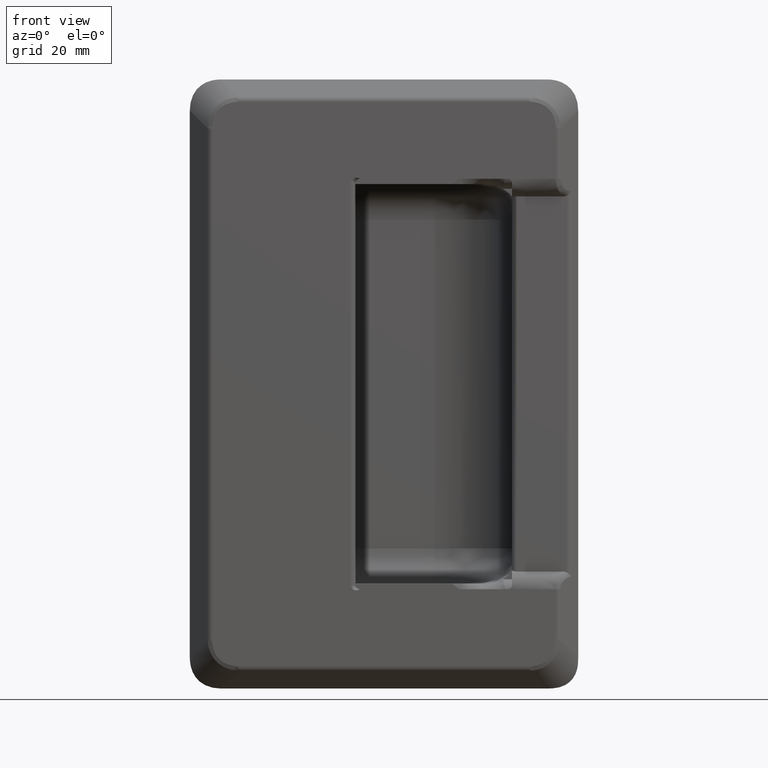
[diagram: clean part render]
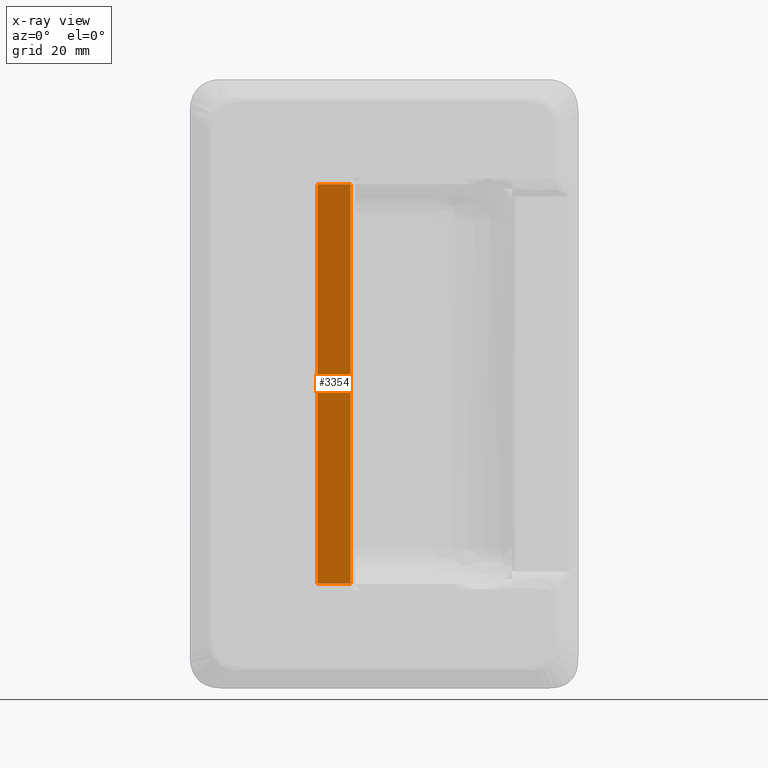
[diagram: x-ray — body ghosted, one internal face saturated and labeled with its STEP entity id]
A machine part, front view, then the same camera in x-ray: the body is ghosted and one INTERNAL B-rep face — a face not visible from any outside direction — is saturated and labeled: STEP entity #3354.
In plain terms, the highlighted face is a freeform B-spline surface patch.
Its self-contained STEP definition (entity closure, byte-faithful):
#2978=CARTESIAN_POINT('',(-7.550000000415890,2.560000000000000,45.249999999965503));
#2979=VERTEX_POINT('',#2978);
#2997=CARTESIAN_POINT('',(-7.550000000415890,2.560000000000000,-45.250000000034397));
#2998=VERTEX_POINT('',#2997);
#3009=CARTESIAN_POINT('',(-7.550000000415890,2.560000000000000,45.249999999965503));
#3010=CARTESIAN_POINT('',(-7.550000000415890,2.560000000000000,-45.250000000034397));
#3011=QUASI_UNIFORM_CURVE('',1,(#3009,#3010),.UNSPECIFIED.,.F.,.U.);
#3012=EDGE_CURVE('',#2979,#2998,#3011,.T.);
#3198=CARTESIAN_POINT('',(-15.098725682517751,2.560000000000000,-45.250000000034397));
#3199=VERTEX_POINT('',#3198);
#3200=CARTESIAN_POINT('',(-7.550000000415890,2.560000000000000,-45.250000000034397));
#3201=CARTESIAN_POINT('',(-15.098725682517751,2.560000000000000,-45.250000000034397));
#3202=QUASI_UNIFORM_CURVE('',1,(#3200,#3201),.UNSPECIFIED.,.F.,.U.);
#3203=EDGE_CURVE('',#2998,#3199,#3202,.T.);
#3255=CARTESIAN_POINT('',(-15.098725682517751,2.560000000000000,45.249999999965503));
#3256=VERTEX_POINT('',#3255);
#3257=CARTESIAN_POINT('',(-7.550000000415890,2.560000000000000,45.249999999965503));
#3258=CARTESIAN_POINT('',(-15.098725682517751,2.560000000000000,45.249999999965503));
#3259=QUASI_UNIFORM_CURVE('',1,(#3257,#3258),.UNSPECIFIED.,.F.,.U.);
#3260=EDGE_CURVE('',#2979,#3256,#3259,.T.);
#3335=CARTESIAN_POINT('',(-15.098725682517751,2.560000000000000,45.249999999965503));
#3336=CARTESIAN_POINT('',(-15.098725682517751,2.560000000000000,-45.250000000034397));
#3337=QUASI_UNIFORM_CURVE('',1,(#3335,#3336),.UNSPECIFIED.,.F.,.U.);
#3338=EDGE_CURVE('',#3256,#3199,#3337,.T.);
#3343=CARTESIAN_POINT('',(-15.475784134428320,2.560000000000000,-49.770474824627840));
#3344=CARTESIAN_POINT('',(-7.172941548505326,2.560000000000000,-49.770474824627840));
#3345=CARTESIAN_POINT('',(-15.475784134428320,2.560000000000000,49.770477251958098));
#3346=CARTESIAN_POINT('',(-7.172941548505326,2.560000000000000,49.770477251958098));
#3347=B_SPLINE_SURFACE_WITH_KNOTS('',1,1,((#3343,#3345),(#3344,#3346)),.UNSPECIFIED.,.F.,.F.,.U.,(2,2),(2,2),(0.0,8.302842585922988),(0.0,99.540952076585938),.UNSPECIFIED.);
#3348=ORIENTED_EDGE('',*,*,#3260,.F.);
#3349=ORIENTED_EDGE('',*,*,#3012,.T.);
#3350=ORIENTED_EDGE('',*,*,#3203,.T.);
#3351=ORIENTED_EDGE('',*,*,#3338,.F.);
#3352=EDGE_LOOP('',(#3348,#3349,#3350,#3351));
#3353=FACE_OUTER_BOUND('',#3352,.T.);
#3354=ADVANCED_FACE('',(#3353),#3347,.F.);